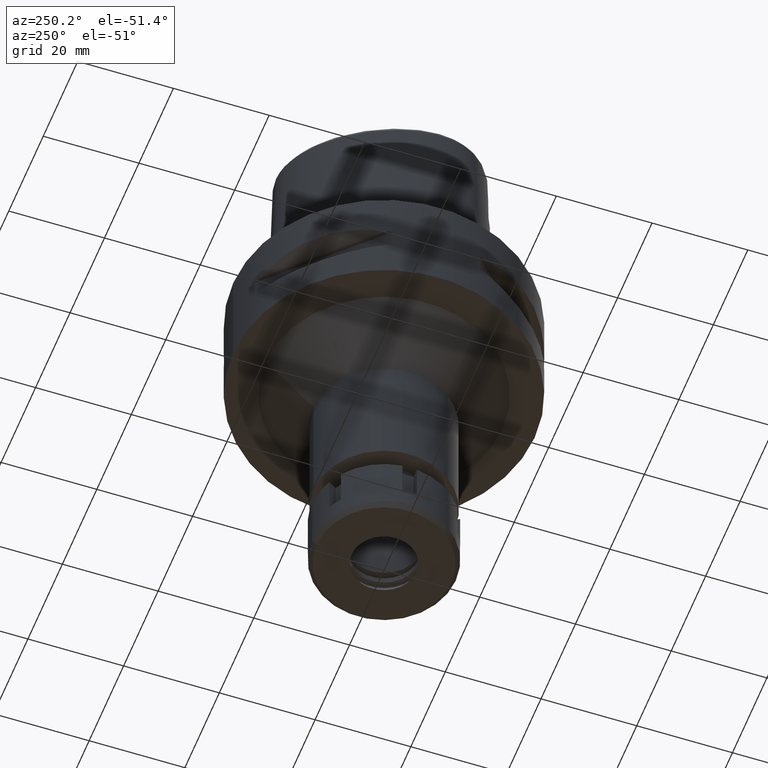
[diagram: clean part render]
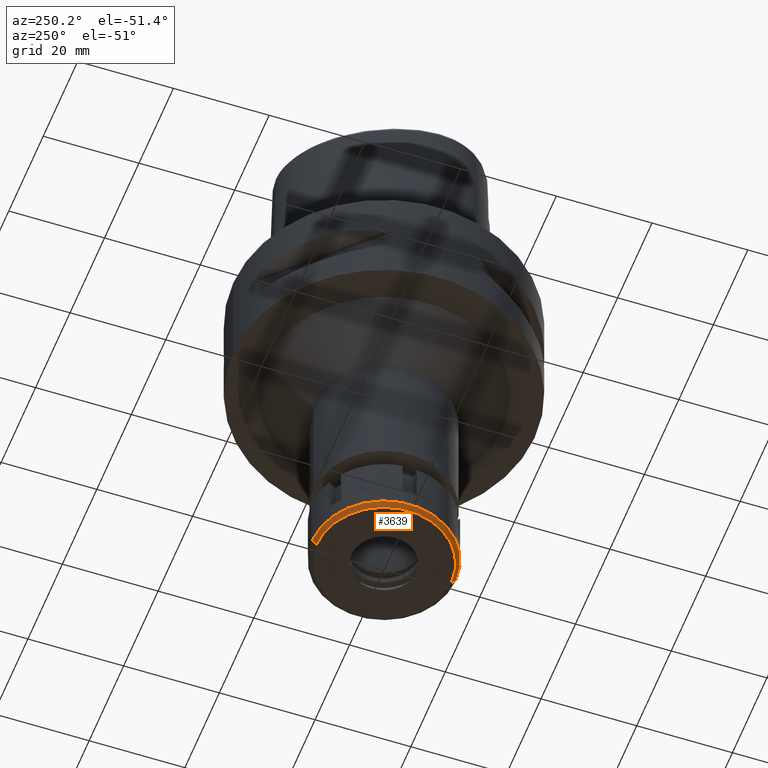
[diagram: same view with one face highlighted and labeled with its STEP entity id]
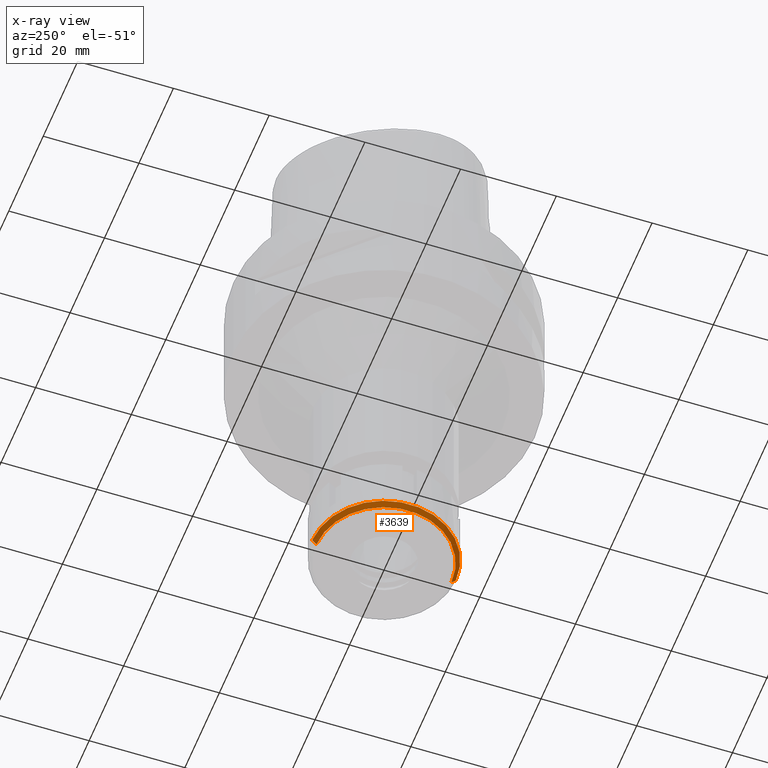
[diagram: x-ray of the same camera — body ghosted, the highlighted face saturated]
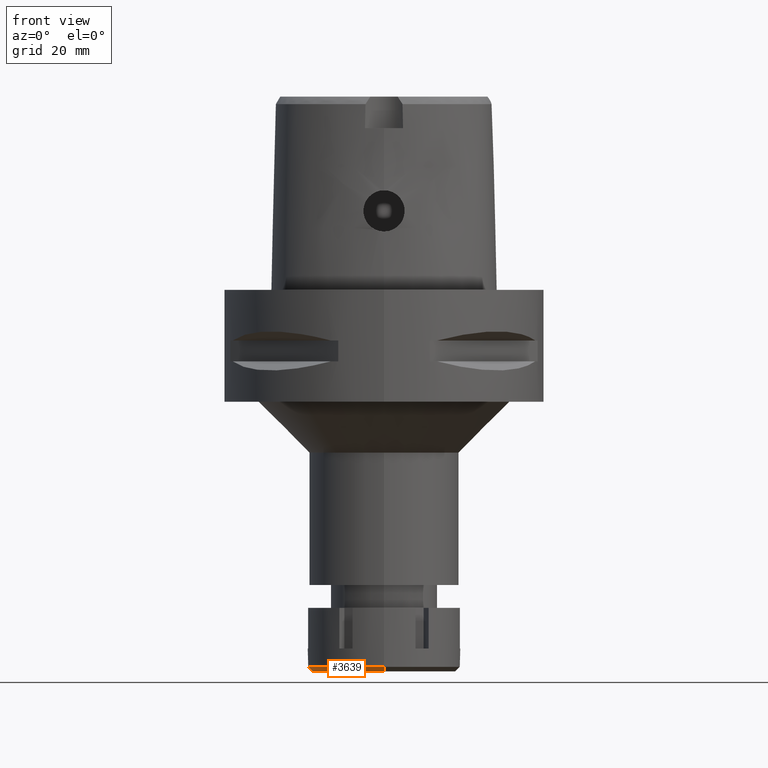
[diagram: same view with one face highlighted and labeled with its STEP entity id]
A machine part, auxiliary view. The second image highlights one B-rep face of the part: STEP entity #3639.
The next image is the same camera in x-ray: the body ghosted, the highlighted face saturated — about 0% of this face is hidden behind the body in this view.
A second angle (front view) of the same face is appended — the face is thin or edge-on in the first view.
In plain terms, the highlighted conical surface has half-angle 45 deg.
Its self-contained STEP definition (entity closure, byte-faithful):
#182 = VERTEX_POINT ( 'NONE', #781 ) ;
#206 = DIRECTION ( 'NONE',  ( 0.0000000000000000000, 0.0000000000000000000, 1.000000000000000000 ) ) ;
#248 = EDGE_CURVE ( 'NONE', #4990, #182, #1199, .T. ) ;
#320 = AXIS2_PLACEMENT_3D ( 'NONE', #2614, #2730, #4416 ) ;
#593 = ORIENTED_EDGE ( 'NONE', *, *, #5259, .F. ) ;
#781 = CARTESIAN_POINT ( 'NONE',  ( 0.0000000000000000000, 14.09999999999999964, -12.50000000000000000 ) ) ;
#1199 = LINE ( 'NONE', #3764, #5440 ) ;
#1446 = EDGE_LOOP ( 'NONE', ( #4345, #3898, #593, #4144 ) ) ;
#1476 = CARTESIAN_POINT ( 'NONE',  ( 0.0000000000000000000, 0.0000000000000000000, -12.05000000000000071 ) ) ;
#1643 = CIRCLE ( 'NONE', #320, 14.09999999999999964 ) ;
#1801 = CARTESIAN_POINT ( 'NONE',  ( 0.0000000000000000000, -14.09999999999999964, -12.50000000000000000 ) ) ;
#1836 = EDGE_CURVE ( 'NONE', #4903, #5150, #4097, .T. ) ;
#1995 = DIRECTION ( 'NONE',  ( 0.0000000000000000000, 0.7071067811865474617, -0.7071067811865474617 ) ) ;
#2227 = CARTESIAN_POINT ( 'NONE',  ( 0.0000000000000000000, 15.00000000000000000, -11.59999999999999964 ) ) ;
#2233 = DIRECTION ( 'NONE',  ( 0.0000000000000000000, 1.000000000000000000, 0.0000000000000000000 ) ) ;
#2306 = CARTESIAN_POINT ( 'NONE',  ( 0.0000000000000000000, 0.0000000000000000000, -11.59999999999999964 ) ) ;
#2428 = CONICAL_SURFACE ( 'NONE', #3145, 14.55000000000000071, 0.7853981633972997312 ) ;
#2614 = CARTESIAN_POINT ( 'NONE',  ( 0.0000000000000000000, 0.0000000000000000000, -12.50000000000000000 ) ) ;
#2730 = DIRECTION ( 'NONE',  ( 0.0000000000000000000, 0.0000000000000000000, 1.000000000000000000 ) ) ;
#2774 = DIRECTION ( 'NONE',  ( 0.0000000000000000000, 0.0000000000000000000, 1.000000000000000000 ) ) ;
#2808 = CARTESIAN_POINT ( 'NONE',  ( 0.0000000000000000000, -15.00000000000000000, -11.59999999999999964 ) ) ;
#2870 = AXIS2_PLACEMENT_3D ( 'NONE', #2306, #206, #5139 ) ;
#3145 = AXIS2_PLACEMENT_3D ( 'NONE', #1476, #2774, #2233 ) ;
#3639 = ADVANCED_FACE ( 'NONE', ( #5218 ), #2428, .T. ) ;
#3764 = CARTESIAN_POINT ( 'NONE',  ( 0.0000000000000000000, 15.00000000000000000, -11.59999999999999964 ) ) ;
#3898 = ORIENTED_EDGE ( 'NONE', *, *, #1836, .F. ) ;
#3926 = CIRCLE ( 'NONE', #2870, 15.00000000000000000 ) ;
#3963 = VECTOR ( 'NONE', #1995, 1000.000000000000114 ) ;
#4097 = LINE ( 'NONE', #2808, #3963 ) ;
#4117 = EDGE_CURVE ( 'NONE', #182, #5150, #1643, .T. ) ;
#4144 = ORIENTED_EDGE ( 'NONE', *, *, #248, .T. ) ;
#4309 = CARTESIAN_POINT ( 'NONE',  ( 0.0000000000000000000, -15.00000000000000000, -11.59999999999999964 ) ) ;
#4345 = ORIENTED_EDGE ( 'NONE', *, *, #4117, .T. ) ;
#4416 = DIRECTION ( 'NONE',  ( 0.0000000000000000000, 1.000000000000000000, 0.0000000000000000000 ) ) ;
#4903 = VERTEX_POINT ( 'NONE', #4309 ) ;
#4990 = VERTEX_POINT ( 'NONE', #2227 ) ;
#5139 = DIRECTION ( 'NONE',  ( 0.0000000000000000000, 1.000000000000000000, 0.0000000000000000000 ) ) ;
#5150 = VERTEX_POINT ( 'NONE', #1801 ) ;
#5218 = FACE_OUTER_BOUND ( 'NONE', #1446, .T. ) ;
#5259 = EDGE_CURVE ( 'NONE', #4990, #4903, #3926, .T. ) ;
#5437 = DIRECTION ( 'NONE',  ( 0.0000000000000000000, -0.7071067811865474617, -0.7071067811865474617 ) ) ;
#5440 = VECTOR ( 'NONE', #5437, 1000.000000000000114 ) ;